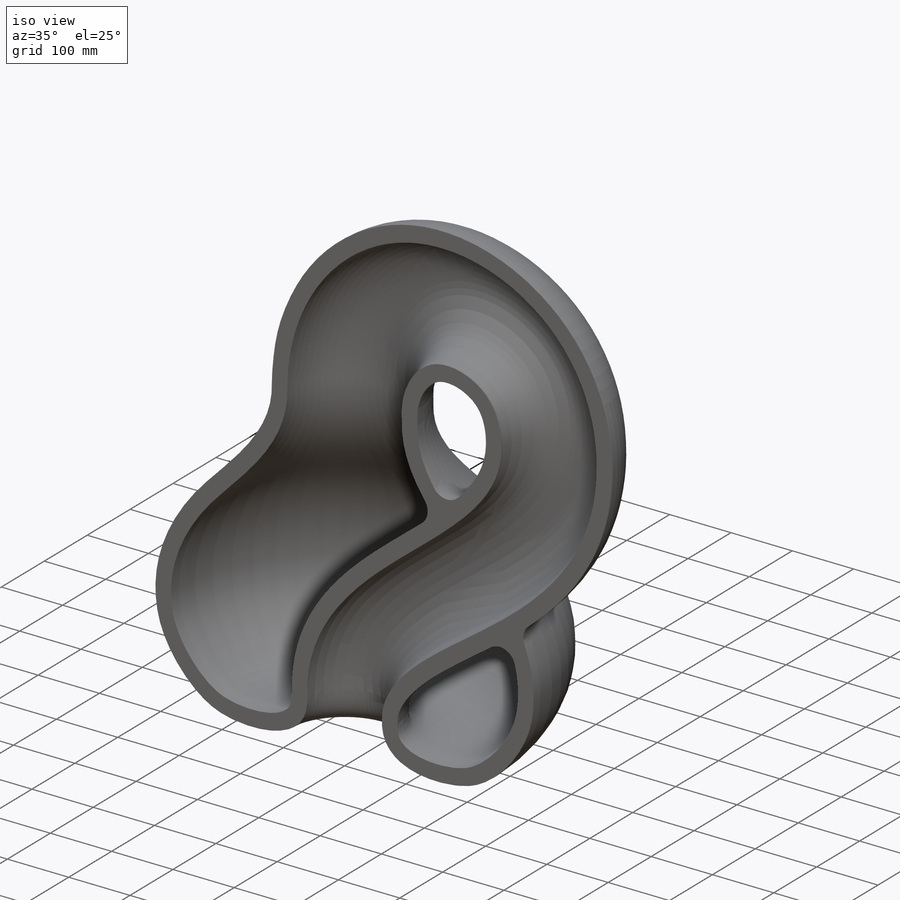
[diagram: iso view]
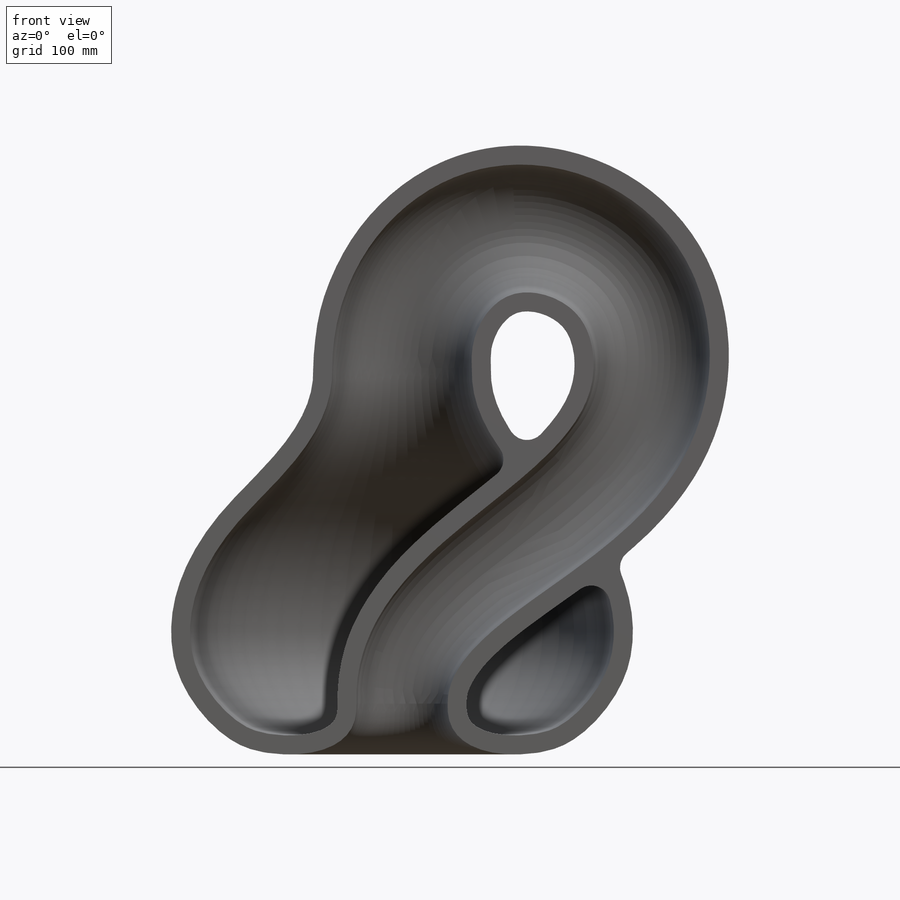
[diagram: front view]
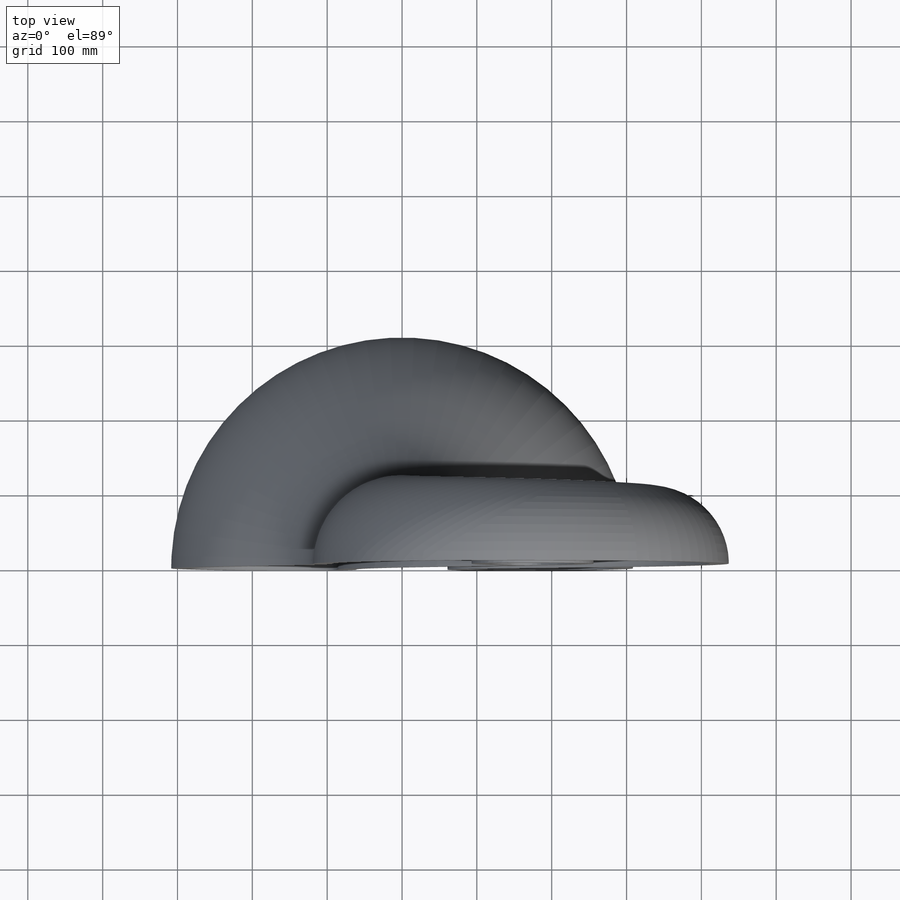
[diagram: top view]
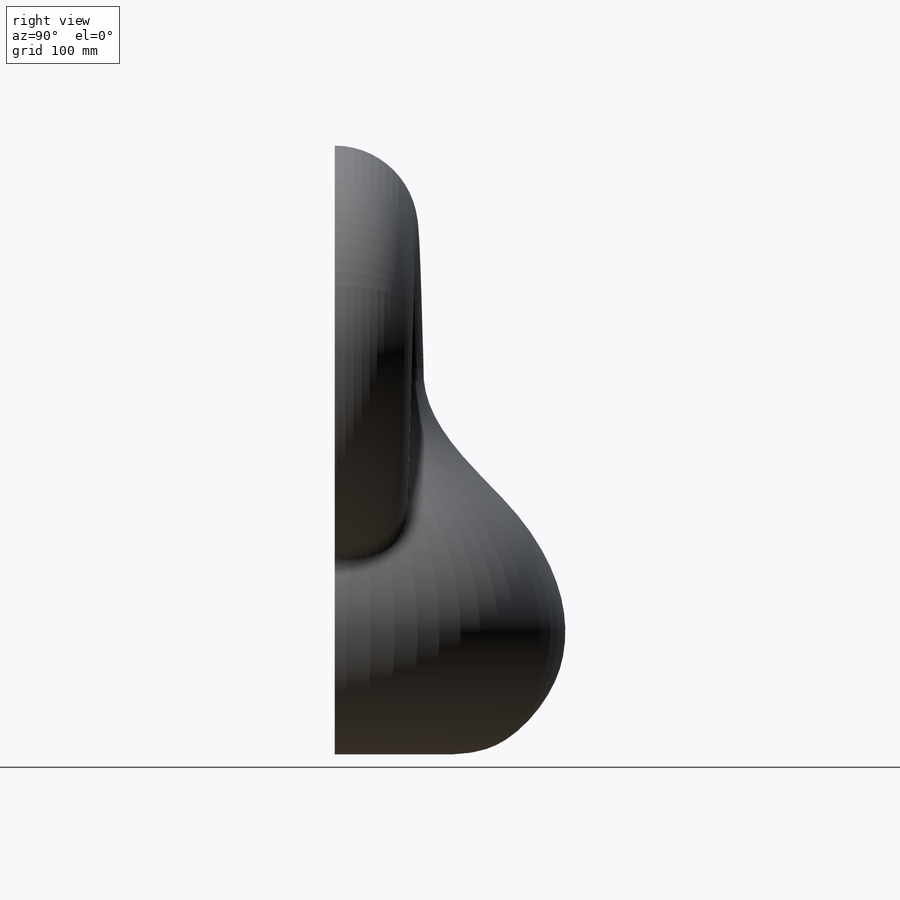
[diagram: right view]
SOLIDWORKS PART (.sldprt)
format: sldprt  version: not decoded by parser v0  size: 4,663,296 bytes
history: native  units: mm
features: sketch x9, material x1, move_body x1, fillet x1, extrude x1, boolean_combine x1, delete_body x1 (+15 scaffold rows collapsed)
feature tree (30):
  scaffold x15  (default folders/planes/origin — collapsed)
  material  "Material <not specified>"
  sketch  "Sketch1"  dims[D1=304.8mm]
  sketch  "Sketch2"  dims[c1.D1=25.4mm c2.D1=360.0deg]
  sketch  "Sketch5"
  sketch  "Sketch5<2>"
  move_body  "Body-Move/Copy6"
  sketch  "3DSketch1"
  sketch  "3DSketch3"
  sketch  "3DSketch3<2>"
  sketch  "3DSketch1<2>"
  fillet  "Fillet16"  Radius=25.4mm
  sketch  "Sketch6"
  extrude  "Extrude1"  Depth=661.51125mm
  boolean_combine  "Combine1"
  delete_body  "Body-Delete1"  Thickness=4.7625mm
decode coverage: 5 of 14 modeling features carry decoded parameters
note: suppression state not decoded; provenance and decode notes live in map.json
